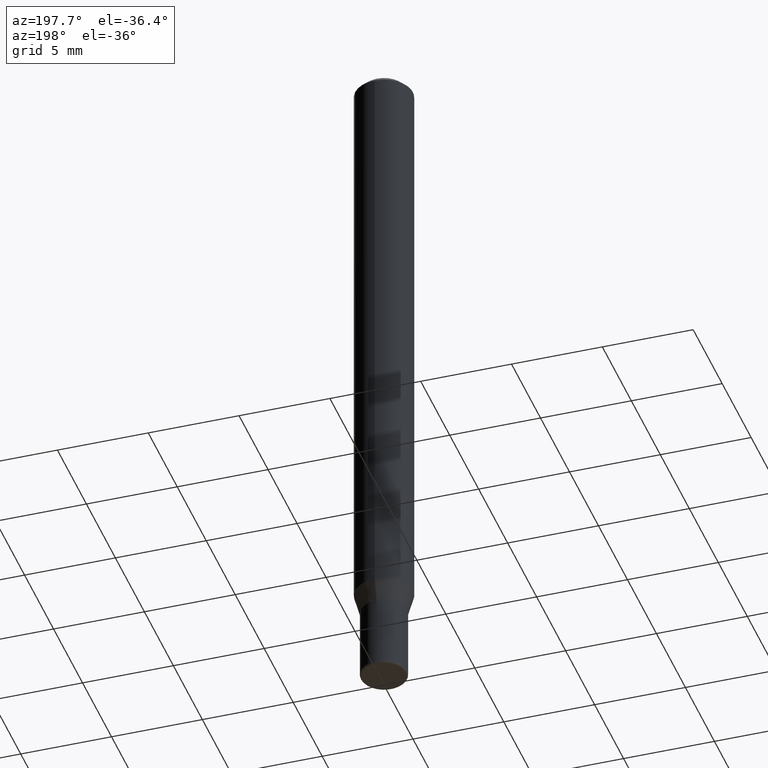
[diagram: clean part render]
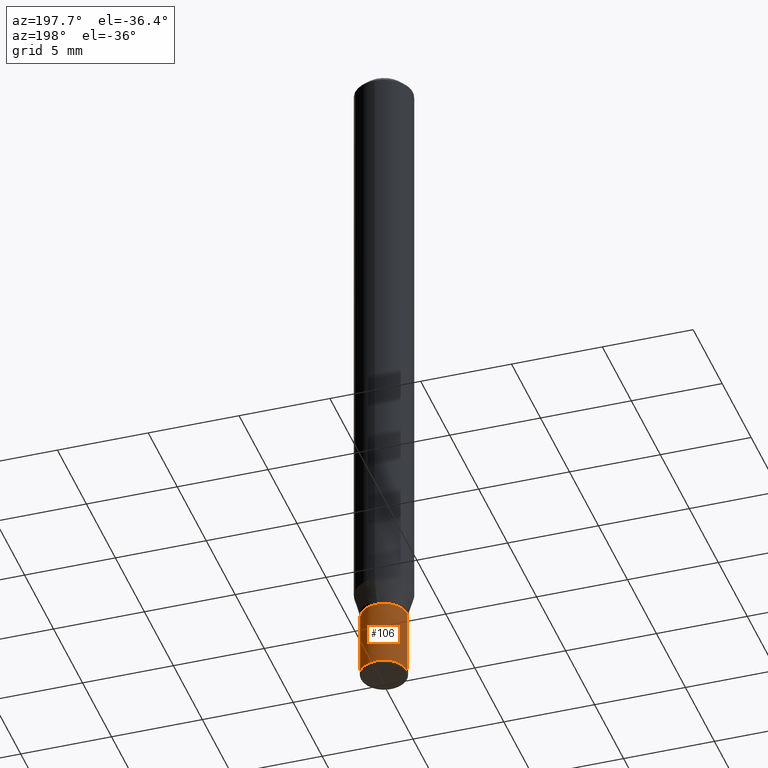
[diagram: same view with one face highlighted and labeled with its STEP entity id]
A machine part, auxiliary view. The second image highlights one B-rep face of the part: STEP entity #106.
In plain terms, the highlighted cylindrical surface (edge-blend (fillet) strip) has radius 1.27 mm, axis along (-0, 0, 1).
Its self-contained STEP definition (entity closure, byte-faithful):
#37 = ORIENTED_EDGE ( 'NONE', *, *, #83, .F. ) ;
#50 = CARTESIAN_POINT ( 'NONE',  ( -0.04999999999999996114, 3.552713678800498168E-16, -2.459467545127451209E-30 ) ) ;
#53 = DIRECTION ( 'NONE',  ( -2.445468806185136877E-29, 3.491481338843145188E-15, 1.000000000000000000 ) ) ;
#59 = DIRECTION ( 'NONE',  ( -2.445468806185136877E-29, 3.491481338843145188E-15, 1.000000000000000000 ) ) ;
#72 = CARTESIAN_POINT ( 'NONE',  ( 0.000000000000000000, 0.000000000000000000, 0.000000000000000000 ) ) ;
#83 = EDGE_CURVE ( 'NONE', #187, #514, #159, .T. ) ;
#106 = ADVANCED_FACE ( 'NONE', ( #321 ), #396, .T. ) ;
#120 = CARTESIAN_POINT ( 'NONE',  ( 3.301382888349935078E-29, -4.713499807438246596E-15, -1.350000000000000089 ) ) ;
#159 = CIRCLE ( 'NONE', #384, 0.05000000000000000278 ) ;
#160 = EDGE_CURVE ( 'NONE', #279, #481, #501, .T. ) ;
#175 = CARTESIAN_POINT ( 'NONE',  ( 0.04999999999999991257, -5.568912735454817265E-15, -1.495000000000000329 ) ) ;
#187 = VERTEX_POINT ( 'NONE', #309 ) ;
#205 = DIRECTION ( 'NONE',  ( 1.000000000000000000, -6.982962677686266711E-15, 0.000000000000000000 ) ) ;
#209 = AXIS2_PLACEMENT_3D ( 'NONE', #354, #218, #205 ) ;
#213 = LINE ( 'NONE', #376, #385 ) ;
#218 = DIRECTION ( 'NONE',  ( -2.445468806185136597E-29, 3.491481338843145583E-15, 1.000000000000000000 ) ) ;
#232 = DIRECTION ( 'NONE',  ( -2.445468806185136597E-29, 3.491481338843145583E-15, 1.000000000000000000 ) ) ;
#254 = EDGE_CURVE ( 'NONE', #481, #514, #463, .T. ) ;
#261 = AXIS2_PLACEMENT_3D ( 'NONE', #72, #232, #484 ) ;
#277 = DIRECTION ( 'NONE',  ( 1.000000000000000000, -6.982962677686274599E-15, 0.000000000000000000 ) ) ;
#279 = VERTEX_POINT ( 'NONE', #175 ) ;
#300 = EDGE_LOOP ( 'NONE', ( #358, #434, #37, #437 ) ) ;
#309 = CARTESIAN_POINT ( 'NONE',  ( 0.05000000000000000278, -5.062647941322559931E-15, -1.350000000000000089 ) ) ;
#321 = FACE_OUTER_BOUND ( 'NONE', #300, .T. ) ;
#354 = CARTESIAN_POINT ( 'NONE',  ( 3.655975865246779683E-29, -5.219764601570503930E-15, -1.495000000000000329 ) ) ;
#358 = ORIENTED_EDGE ( 'NONE', *, *, #160, .T. ) ;
#359 = DIRECTION ( 'NONE',  ( -2.445468806185136597E-29, 3.491481338843145583E-15, 1.000000000000000000 ) ) ;
#375 = VECTOR ( 'NONE', #59, 39.37007874015748143 ) ;
#376 = CARTESIAN_POINT ( 'NONE',  ( 0.04999999999999996114, -3.491481338843130397E-16, 2.438088387897966145E-30 ) ) ;
#384 = AXIS2_PLACEMENT_3D ( 'NONE', #120, #359, #277 ) ;
#385 = VECTOR ( 'NONE', #53, 39.37007874015748143 ) ;
#396 = CYLINDRICAL_SURFACE ( 'NONE', #261, 0.04999999999999996114 ) ;
#431 = EDGE_CURVE ( 'NONE', #279, #187, #213, .T. ) ;
#434 = ORIENTED_EDGE ( 'NONE', *, *, #254, .T. ) ;
#437 = ORIENTED_EDGE ( 'NONE', *, *, #431, .F. ) ;
#457 = CARTESIAN_POINT ( 'NONE',  ( -0.05000000000000000278, -4.611360836624325249E-15, -1.350000000000000089 ) ) ;
#463 = LINE ( 'NONE', #50, #375 ) ;
#481 = VERTEX_POINT ( 'NONE', #497 ) ;
#484 = DIRECTION ( 'NONE',  ( 1.000000000000000000, -6.982962677686265922E-15, 4.876176775795936353E-29 ) ) ;
#497 = CARTESIAN_POINT ( 'NONE',  ( -0.04999999999999991257, -4.611360836624325249E-15, -1.495000000000000329 ) ) ;
#501 = CIRCLE ( 'NONE', #209, 0.04999999999999991257 ) ;
#514 = VERTEX_POINT ( 'NONE', #457 ) ;